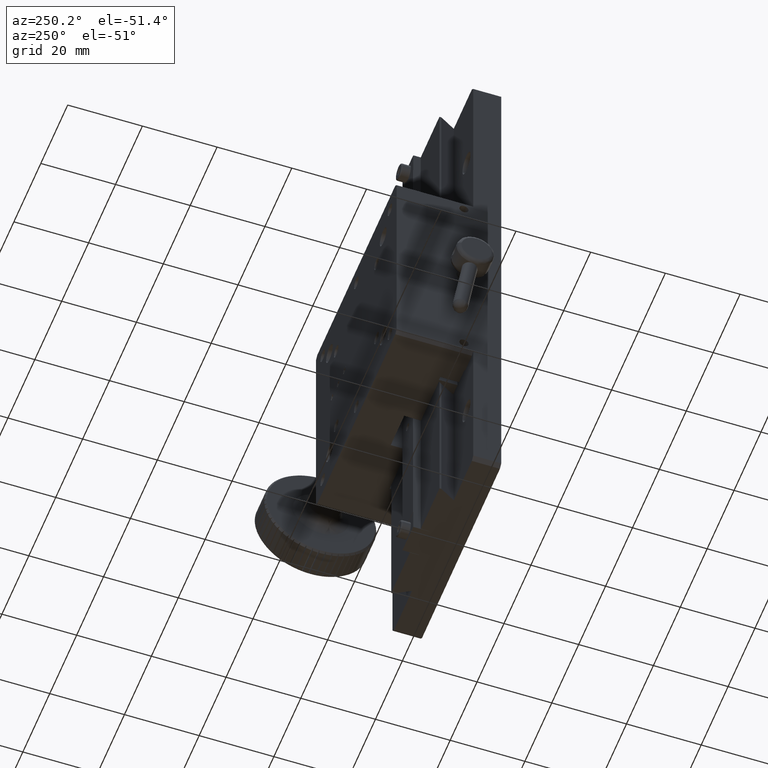
[diagram: clean part render]
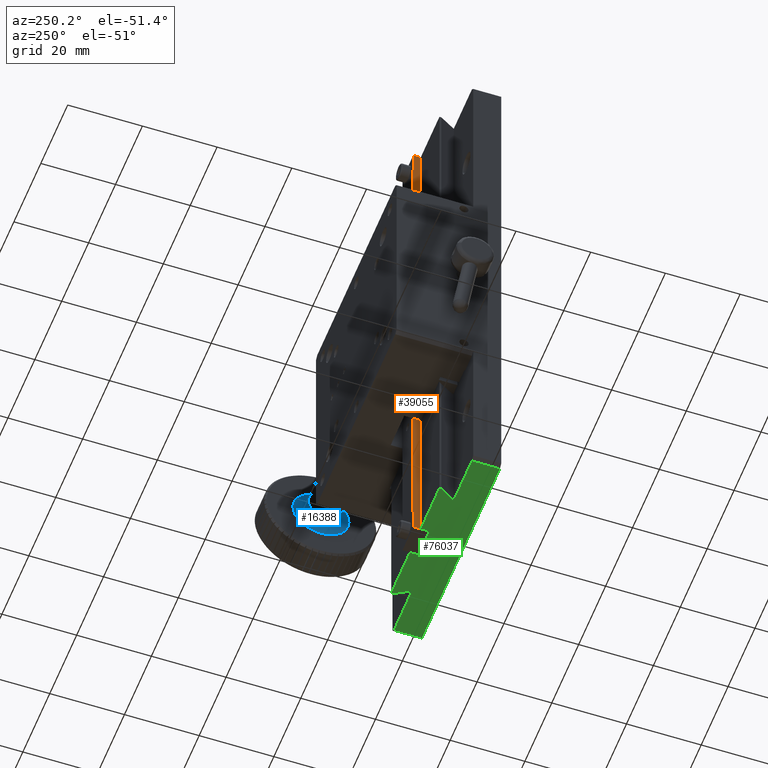
[diagram: same view with three faces highlighted in distinct colors, each labeled with its STEP entity id]
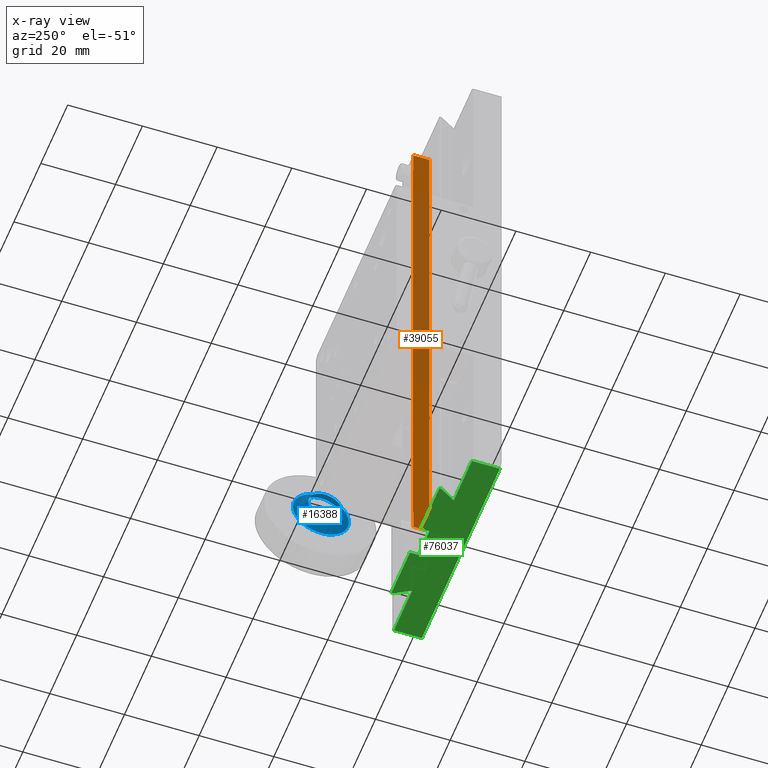
[diagram: x-ray of the same camera — body ghosted, the three highlighted faces saturated]
A machine part, auxiliary view with three faces highlighted in distinct colors.
The next image is the same camera in x-ray (body ghosted, the three faces saturated) — at least one of them is partly hidden behind the body in this view.
Their STEP definitions:

[orange] entity #39055 — the highlighted planar face has unit normal (1, 0, -0).
#3219 = CARTESIAN_POINT ( 'NONE',  ( 60.50156960994771538, 71.37772800986743960, 19.82318078334707678 ) ) ;
#3341 = LINE ( 'NONE', #18684, #95966 ) ;
#4763 = VECTOR ( 'NONE', #82311, 1000.000000000000000 ) ;
#6037 = CARTESIAN_POINT ( 'NONE',  ( 60.50156960994809907, 71.30272800986743675, 163.8231807833470555 ) ) ;
#6126 = DIRECTION ( 'NONE',  ( 0.000000000000000000, 1.000000000000000000, 0.000000000000000000 ) ) ;
#7041 = CARTESIAN_POINT ( 'NONE',  ( 60.50156960994759459, 71.30272800986740833, 19.82318078334706968 ) ) ;
#9536 = EDGE_CURVE ( 'NONE', #34755, #72191, #11022, .T. ) ;
#10898 = EDGE_CURVE ( 'NONE', #72492, #67115, #81812, .T. ) ;
#11022 = LINE ( 'NONE', #42221, #25913 ) ;
#11810 = EDGE_CURVE ( 'NONE', #16982, #72492, #24421, .T. ) ;
#12265 = ORIENTED_EDGE ( 'NONE', *, *, #87135, .F. ) ;
#12750 = ORIENTED_EDGE ( 'NONE', *, *, #32041, .T. ) ;
#13912 = EDGE_CURVE ( 'NONE', #20950, #67115, #59156, .T. ) ;
#15326 = LINE ( 'NONE', #78237, #71703 ) ;
#16982 = VERTEX_POINT ( 'NONE', #56753 ) ;
#18209 = VERTEX_POINT ( 'NONE', #36132 ) ;
#18257 = DIRECTION ( 'NONE',  ( 1.000000000000000000, 0.000000000000000000, -3.491481338843133355E-15 ) ) ;
#18684 = CARTESIAN_POINT ( 'NONE',  ( 60.50156960994809907, 71.37772800986743960, 163.8231807833470555 ) ) ;
#20950 = VERTEX_POINT ( 'NONE', #23530 ) ;
#23530 = CARTESIAN_POINT ( 'NONE',  ( 60.50156960994757327, 67.00272800986743960, 13.82318078334706435 ) ) ;
#24421 = LINE ( 'NONE', #41302, #79912 ) ;
#25913 = VECTOR ( 'NONE', #79593, 1000.000000000000000 ) ;
#28940 = AXIS2_PLACEMENT_3D ( 'NONE', #95986, #18257, #74499 ) ;
#32041 = EDGE_CURVE ( 'NONE', #16982, #90253, #84608, .T. ) ;
#33210 = EDGE_CURVE ( 'NONE', #34755, #90253, #3341, .T. ) ;
#33600 = FACE_OUTER_BOUND ( 'NONE', #68856, .T. ) ;
#34622 = CARTESIAN_POINT ( 'NONE',  ( 60.50156960994757327, 67.00272800986743960, 163.8231807833470270 ) ) ;
#34755 = VERTEX_POINT ( 'NONE', #3219 ) ;
#36132 = CARTESIAN_POINT ( 'NONE',  ( 60.50156960994758037, 71.30272800986740833, 13.82318078334707145 ) ) ;
#38227 = CARTESIAN_POINT ( 'NONE',  ( 60.50156960994809907, 71.30272800986740833, 163.8231807833470555 ) ) ;
#39055 = ADVANCED_FACE ( 'NONE', ( #33600 ), #64791, .F. ) ;
#39788 = DIRECTION ( 'NONE',  ( 3.491481338843133355E-15, -0.000000000000000000, 1.000000000000000000 ) ) ;
#41302 = CARTESIAN_POINT ( 'NONE',  ( 60.50156960994809907, 71.30272800986743675, 163.8231807833470555 ) ) ;
#42221 = CARTESIAN_POINT ( 'NONE',  ( 60.50156960994759459, 71.30272800986740833, 19.82318078334707678 ) ) ;
#49581 = ORIENTED_EDGE ( 'NONE', *, *, #10898, .F. ) ;
#51101 = CARTESIAN_POINT ( 'NONE',  ( 60.50156960994809907, 67.00272800986743960, 163.8231807833470555 ) ) ;
#51463 = ORIENTED_EDGE ( 'NONE', *, *, #63767, .F. ) ;
#53039 = CARTESIAN_POINT ( 'NONE',  ( 60.50156960994796407, 67.00272800986743960, 163.8231807833470555 ) ) ;
#54582 = LINE ( 'NONE', #38227, #96125 ) ;
#56753 = CARTESIAN_POINT ( 'NONE',  ( 60.50156960994808486, 71.30272800986743675, 157.8231807833470555 ) ) ;
#59156 = LINE ( 'NONE', #34622, #94714 ) ;
#63767 = EDGE_CURVE ( 'NONE', #20950, #18209, #15326, .T. ) ;
#64791 = PLANE ( 'NONE',  #28940 ) ;
#67115 = VERTEX_POINT ( 'NONE', #53039 ) ;
#67138 = ORIENTED_EDGE ( 'NONE', *, *, #11810, .F. ) ;
#68856 = EDGE_LOOP ( 'NONE', ( #67138, #12750, #92648, #80072, #12265, #51463, #77533, #49581 ) ) ;
#71703 = VECTOR ( 'NONE', #6126, 1000.000000000000000 ) ;
#72191 = VERTEX_POINT ( 'NONE', #7041 ) ;
#72492 = VERTEX_POINT ( 'NONE', #6037 ) ;
#73194 = CARTESIAN_POINT ( 'NONE',  ( 60.50156960994807775, 71.37772800986743960, 157.8231807833470555 ) ) ;
#74499 = DIRECTION ( 'NONE',  ( -3.491481338843133355E-15, 0.000000000000000000, -1.000000000000000000 ) ) ;
#75957 = CARTESIAN_POINT ( 'NONE',  ( 60.50156960994807775, 71.30272800986743675, 157.8231807833470555 ) ) ;
#77533 = ORIENTED_EDGE ( 'NONE', *, *, #13912, .T. ) ;
#78237 = CARTESIAN_POINT ( 'NONE',  ( 60.50156960994757327, 67.00272800986743960, 13.82318078334707145 ) ) ;
#79593 = DIRECTION ( 'NONE',  ( -0.000000000000000000, -1.000000000000000000, -0.000000000000000000 ) ) ;
#79912 = VECTOR ( 'NONE', #39788, 1000.000000000000000 ) ;
#80072 = ORIENTED_EDGE ( 'NONE', *, *, #9536, .T. ) ;
#81812 = LINE ( 'NONE', #51101, #4763 ) ;
#82311 = DIRECTION ( 'NONE',  ( -0.000000000000000000, -1.000000000000000000, -0.000000000000000000 ) ) ;
#84608 = LINE ( 'NONE', #75957, #86346 ) ;
#85790 = DIRECTION ( 'NONE',  ( 3.491481338843133355E-15, -0.000000000000000000, 1.000000000000000000 ) ) ;
#86346 = VECTOR ( 'NONE', #98461, 1000.000000000000000 ) ;
#87135 = EDGE_CURVE ( 'NONE', #18209, #72191, #54582, .T. ) ;
#88850 = DIRECTION ( 'NONE',  ( 0.000000000000000000, -0.000000000000000000, 1.000000000000000000 ) ) ;
#89266 = DIRECTION ( 'NONE',  ( 3.491481338843133355E-15, -0.000000000000000000, 1.000000000000000000 ) ) ;
#90253 = VERTEX_POINT ( 'NONE', #73194 ) ;
#92648 = ORIENTED_EDGE ( 'NONE', *, *, #33210, .F. ) ;
#94714 = VECTOR ( 'NONE', #88850, 1000.000000000000000 ) ;
#95966 = VECTOR ( 'NONE', #89266, 1000.000000000000000 ) ;
#95986 = CARTESIAN_POINT ( 'NONE',  ( 60.50156960994809907, 67.00272800986743960, 163.8231807833470555 ) ) ;
#96125 = VECTOR ( 'NONE', #85790, 1000.000000000000000 ) ;
#98461 = DIRECTION ( 'NONE',  ( 0.000000000000000000, 1.000000000000000000, 0.000000000000000000 ) ) ;

[blue] entity #16388 — the highlighted face is a freeform B-spline surface patch.
#1970 = CARTESIAN_POINT ( 'NONE',  ( 118.9015696099422854, 77.66444812711456791, 93.07250642092982673 ) ) ;
#5305 = CARTESIAN_POINT ( 'NONE',  ( 117.6589289228233497, 73.40787182901657104, 81.85281131729750825 ) ) ;
#5362 = CARTESIAN_POINT ( 'NONE',  ( 118.9015696099426691, 72.34372775449214998, 79.04788754138944284 ) ) ;
#5567 = EDGE_LOOP ( 'NONE', ( #35929, #38066 ) ) ;
#6286 = CARTESIAN_POINT ( 'NONE',  ( 117.6589289228224828, 85.01507538031434308, 87.07515042144811446 ) ) ;
#9718 = VERTEX_POINT ( 'NONE', #5362 ) ;
#10306 =( BOUNDED_CURVE ( )  B_SPLINE_CURVE ( 3, ( #1970, #49019, #17806, #50001 ),
 .UNSPECIFIED., .F., .T. ) 
 B_SPLINE_CURVE_WITH_KNOTS ( ( 4, 4 ),
 ( 0.000000000000000000, 1.000000000000000000 ),
 .UNSPECIFIED. ) 
 CURVE ( )  GEOMETRIC_REPRESENTATION_ITEM ( )  RATIONAL_B_SPLINE_CURVE ( ( 1.000000000000000000, 0.3333333333333321491, 0.3333333333333321491, 1.000000000000000000 ) ) 
 REPRESENTATION_ITEM ( '' )  );
#13493 = CARTESIAN_POINT ( 'NONE',  ( 118.9015696099426833, 72.34372775449216419, 79.04788754138944284 ) ) ;
#14026 = VERTEX_POINT ( 'NONE', #19261 ) ;
#14988 = CARTESIAN_POINT ( 'NONE',  ( 118.9015696099426833, 72.34372775449216419, 79.04788754138944284 ) ) ;
#15411 = VERTEX_POINT ( 'NONE', #78330 ) ;
#16388 = ADVANCED_FACE ( 'NONE', ( #21643, #44681 ), #19325, .F. ) ;
#17342 = CARTESIAN_POINT ( 'NONE',  ( 115.9015696099424844, 75.00408794080323105, 86.06019698115960637 ) ) ;
#17806 = CARTESIAN_POINT ( 'NONE',  ( 118.9015696099416601, 86.36834663403250545, 73.72716716876679754 ) ) ;
#19261 = CARTESIAN_POINT ( 'NONE',  ( 118.9015696099422854, 77.66444812711456791, 93.07250642092982673 ) ) ;
#19325 =( BOUNDED_SURFACE ( )  B_SPLINE_SURFACE ( 3, 3, ( 
 ( #92719, #52350, #85053, #68702, #29826, #22636, #60528 ),
 ( #5305, #60013, #6286, #36010, #67210, #75403, #45170 ),
 ( #21143, #20634, #92222, #37996, #91225, #83559, #61016 ),
 ( #13493, #22132, #53843, #83052, #75893, #59520, #14988 ) ),
 .UNSPECIFIED., .F., .T., .T. ) 
 B_SPLINE_SURFACE_WITH_KNOTS ( ( 4, 4 ),
 ( 4, 3, 4 ),
 ( 0.000000000000000000, 1.000000000000000000 ),
 ( 0.000000000000000000, 0.5000000000000000000, 1.000000000000000000 ),
 .UNSPECIFIED. ) 
 GEOMETRIC_REPRESENTATION_ITEM ( )  RATIONAL_B_SPLINE_SURFACE ( (
 ( 1.000000000000000000, 0.3333333333333333148, 0.3333333333333333148, 1.000000000000000000, 0.3333333333333333148, 0.3333333333333333148, 1.000000000000000000),
 ( 0.8047378541243646044, 0.2682459513747881830, 0.2682459513747881830, 0.8047378541243646044, 0.2682459513747881830, 0.2682459513747881830, 0.8047378541243646044),
 ( 0.8047378541243646044, 0.2682459513747881830, 0.2682459513747881830, 0.8047378541243646044, 0.2682459513747881830, 0.2682459513747881830, 0.8047378541243646044),
 ( 1.000000000000000000, 0.3333333333333333148, 0.3333333333333333148, 1.000000000000000000, 0.3333333333333333148, 0.3333333333333333148, 1.000000000000000000) ) ) 
 REPRESENTATION_ITEM ( '' )  SURFACE ( )  );
#20634 = CARTESIAN_POINT ( 'NONE',  ( 118.9015696099418733, 83.70553518756153721, 76.61697580834604082 ) ) ;
#21143 = CARTESIAN_POINT ( 'NONE',  ( 118.9015696099426691, 72.96708892102965649, 80.69097384789364469 ) ) ;
#21643 = FACE_OUTER_BOUND ( 'NONE', #5567, .T. ) ;
#22132 = CARTESIAN_POINT ( 'NONE',  ( 118.9015696099416743, 86.36834663403249124, 73.72716716876684018 ) ) ;
#22580 = CARTESIAN_POINT ( 'NONE',  ( 118.9015696099436639, 58.31910887495381957, 84.36860791401130655 ) ) ;
#22636 = CARTESIAN_POINT ( 'NONE',  ( 115.9015696099432091, 64.99310050129226113, 85.04524354087108406 ) ) ;
#26336 = ORIENTED_EDGE ( 'NONE', *, *, #78812, .F. ) ;
#26469 = EDGE_LOOP ( 'NONE', ( #26336 ) ) ;
#29826 = CARTESIAN_POINT ( 'NONE',  ( 115.9015696099429533, 68.18553272486583694, 93.46001486859526608 ) ) ;
#35718 = EDGE_CURVE ( 'NONE', #9718, #14026, #42919, .T. ) ;
#35929 = ORIENTED_EDGE ( 'NONE', *, *, #100715, .T. ) ;
#36010 = CARTESIAN_POINT ( 'NONE',  ( 117.6589289228231223, 76.60030405259014685, 90.26758264502170448 ) ) ;
#37996 = CARTESIAN_POINT ( 'NONE',  ( 118.9015696099423707, 77.04108696057726036, 91.42942011442558226 ) ) ;
#38066 = ORIENTED_EDGE ( 'NONE', *, *, #35718, .T. ) ;
#42919 =( BOUNDED_CURVE ( )  B_SPLINE_CURVE ( 3, ( #85502, #22580, #62472, #55306 ),
 .UNSPECIFIED., .F., .T. ) 
 B_SPLINE_CURVE_WITH_KNOTS ( ( 4, 4 ),
 ( 0.000000000000000000, 1.000000000000000000 ),
 .UNSPECIFIED. ) 
 CURVE ( )  GEOMETRIC_REPRESENTATION_ITEM ( )  RATIONAL_B_SPLINE_CURVE ( ( 1.000000000000000000, 0.3333333333333806103, 0.3333333333333806103, 1.000000000000000000 ) ) 
 REPRESENTATION_ITEM ( '' )  );
#44681 = FACE_OUTER_BOUND ( 'NONE', #26469, .T. ) ;
#45170 = CARTESIAN_POINT ( 'NONE',  ( 117.6589289228233497, 73.40787182901657104, 81.85281131729750825 ) ) ;
#49019 = CARTESIAN_POINT ( 'NONE',  ( 118.9015696099412764, 91.68906700665512233, 87.75178604830716722 ) ) ;
#50001 = CARTESIAN_POINT ( 'NONE',  ( 118.9015696099426691, 72.34372775449214998, 79.04788754138944284 ) ) ;
#52350 = CARTESIAN_POINT ( 'NONE',  ( 115.9015696099419443, 81.82264315674065358, 78.66037909372393244 ) ) ;
#53843 = CARTESIAN_POINT ( 'NONE',  ( 118.9015696099412622, 91.68906700665505127, 87.75178604830718143 ) ) ;
#54825 = CIRCLE ( 'NONE', #97334, 4.500000000000003553 ) ;
#55306 = CARTESIAN_POINT ( 'NONE',  ( 118.9015696099422854, 77.66444812711456791, 93.07250642092982673 ) ) ;
#59520 = CARTESIAN_POINT ( 'NONE',  ( 118.9015696099436923, 58.31910887495184426, 84.36860791401204551 ) ) ;
#60013 = CARTESIAN_POINT ( 'NONE',  ( 117.6589289228226960, 81.82264315674078148, 78.66037909372394665 ) ) ;
#60528 = CARTESIAN_POINT ( 'NONE',  ( 115.9015696099425980, 73.40787182901645735, 81.85281131729750825 ) ) ;
#61016 = CARTESIAN_POINT ( 'NONE',  ( 118.9015696099426691, 72.96708892102965649, 80.69097384789364469 ) ) ;
#62472 = CARTESIAN_POINT ( 'NONE',  ( 118.9015696099433086, 63.63982924757470983, 98.39322679355001355 ) ) ;
#64396 = DIRECTION ( 'NONE',  ( 2.467162276944790489E-14, -0.3547146915081743068, -0.9349745919693543961 ) ) ;
#65899 = DIRECTION ( 'NONE',  ( -1.000000000000000000, -7.255693219817080100E-14, 3.296481619773228797E-18 ) ) ;
#67210 = CARTESIAN_POINT ( 'NONE',  ( 117.6589289228237050, 68.18553272486596484, 93.46001486859525187 ) ) ;
#68702 = CARTESIAN_POINT ( 'NONE',  ( 115.9015696099423707, 76.60030405259001896, 90.26758264502170448 ) ) ;
#75403 = CARTESIAN_POINT ( 'NONE',  ( 117.6589289228239323, 64.99310050129237482, 85.04524354087108406 ) ) ;
#75893 = CARTESIAN_POINT ( 'NONE',  ( 118.9015696099432944, 63.63982924757443271, 98.39322679355231571 ) ) ;
#78330 = CARTESIAN_POINT ( 'NONE',  ( 115.9015696099425980, 73.40787182901645735, 81.85281131729750825 ) ) ;
#78812 = EDGE_CURVE ( 'NONE', #15411, #15411, #54825, .T. ) ;
#83052 = CARTESIAN_POINT ( 'NONE',  ( 118.9015696099422854, 77.66444812711475265, 93.07250642092975568 ) ) ;
#83559 = CARTESIAN_POINT ( 'NONE',  ( 118.9015696099434223, 62.22864265449774024, 84.76497188744126277 ) ) ;
#85053 = CARTESIAN_POINT ( 'NONE',  ( 115.9015696099417596, 85.01507538031422939, 87.07515042144812867 ) ) ;
#85502 = CARTESIAN_POINT ( 'NONE',  ( 118.9015696099426691, 72.34372775449214998, 79.04788754138944284 ) ) ;
#91225 = CARTESIAN_POINT ( 'NONE',  ( 118.9015696099431096, 66.30264069404532279, 95.50341815397314349 ) ) ;
#92222 = CARTESIAN_POINT ( 'NONE',  ( 118.9015696099415464, 87.77953322710916950, 87.35542207487797839 ) ) ;
#92719 = CARTESIAN_POINT ( 'NONE',  ( 115.9015696099425980, 73.40787182901645735, 81.85281131729750825 ) ) ;
#97334 = AXIS2_PLACEMENT_3D ( 'NONE', #17342, #65899, #64396 ) ;
#100715 = EDGE_CURVE ( 'NONE', #14026, #9718, #10306, .T. ) ;

[green] entity #76037 — the highlighted planar face has unit normal (0, 0, -1).
#103 = CARTESIAN_POINT ( 'NONE',  ( 35.50156960994751643, 57.10272800986759734, 13.82318078334729350 ) ) ;
#1127 = VECTOR ( 'NONE', #13478, 1000.000000000000000 ) ;
#1170 = VERTEX_POINT ( 'NONE', #31192 ) ;
#2372 = CARTESIAN_POINT ( 'NONE',  ( 82.41511587513878112, 69.30272800986782045, 13.82318078334728284 ) ) ;
#3172 = VECTOR ( 'NONE', #79277, 1000.000000000000000 ) ;
#3432 = VERTEX_POINT ( 'NONE', #58159 ) ;
#4284 = CARTESIAN_POINT ( 'NONE',  ( 64.50156960994755195, 64.60272800986781760, 13.82318078334728284 ) ) ;
#6803 = EDGE_CURVE ( 'NONE', #79972, #76038, #19048, .T. ) ;
#7176 = EDGE_CURVE ( 'NONE', #72772, #88653, #37411, .T. ) ;
#7761 = DIRECTION ( 'NONE',  ( 1.000000000000000000, -0.000000000000000000, 0.000000000000000000 ) ) ;
#9074 = CARTESIAN_POINT ( 'NONE',  ( 82.41511587513879533, 68.78311276759721693, 13.82318078334727751 ) ) ;
#9166 = CARTESIAN_POINT ( 'NONE',  ( 93.50156960994749511, 57.10272800986770392, 13.82318078334728284 ) ) ;
#9379 = VECTOR ( 'NONE', #66743, 1000.000000000000000 ) ;
#9445 = LINE ( 'NONE', #4284, #69759 ) ;
#10772 = ORIENTED_EDGE ( 'NONE', *, *, #38315, .T. ) ;
#12972 = CARTESIAN_POINT ( 'NONE',  ( 60.45156960994744111, 57.10272800986770392, 13.82318078334728284 ) ) ;
#13085 = EDGE_CURVE ( 'NONE', #76038, #73500, #58647, .T. ) ;
#13189 = ORIENTED_EDGE ( 'NONE', *, *, #91522, .T. ) ;
#13478 = DIRECTION ( 'NONE',  ( -0.000000000000000000, -1.000000000000000000, -0.000000000000000000 ) ) ;
#14612 = VECTOR ( 'NONE', #28456, 1000.000000000000000 ) ;
#15347 = LINE ( 'NONE', #95122, #3172 ) ;
#15524 = VERTEX_POINT ( 'NONE', #95861 ) ;
#15942 = PLANE ( 'NONE',  #77632 ) ;
#16126 = VERTEX_POINT ( 'NONE', #33477 ) ;
#16735 = VERTEX_POINT ( 'NONE', #25548 ) ;
#17464 = FACE_OUTER_BOUND ( 'NONE', #75167, .T. ) ;
#19048 = LINE ( 'NONE', #43089, #89536 ) ;
#20195 = LINE ( 'NONE', #36557, #9379 ) ;
#21266 = VECTOR ( 'NONE', #88254, 1000.000000000000000 ) ;
#23951 = CARTESIAN_POINT ( 'NONE',  ( 82.41511587513878112, 68.78311276759717430, 13.82318078334728284 ) ) ;
#24009 = LINE ( 'NONE', #100247, #78426 ) ;
#24776 = EDGE_CURVE ( 'NONE', #63853, #3432, #24009, .T. ) ;
#25548 = CARTESIAN_POINT ( 'NONE',  ( 46.58802334475602436, 69.30272800986759307, 13.82318078334728462 ) ) ;
#25815 = LINE ( 'NONE', #49857, #21266 ) ;
#28151 = CARTESIAN_POINT ( 'NONE',  ( 93.50156960994749511, 64.60272800986788866, 13.82318078334729172 ) ) ;
#28456 = DIRECTION ( 'NONE',  ( 0.000000000000000000, 1.000000000000000000, 0.000000000000000000 ) ) ;
#29735 = ORIENTED_EDGE ( 'NONE', *, *, #33535, .T. ) ;
#29754 = ORIENTED_EDGE ( 'NONE', *, *, #71153, .T. ) ;
#30788 = CARTESIAN_POINT ( 'NONE',  ( 64.50156960994755195, 67.00272800986766697, 13.82318078334728284 ) ) ;
#31004 = VECTOR ( 'NONE', #50676, 1000.000000000000000 ) ;
#31192 = CARTESIAN_POINT ( 'NONE',  ( 60.45156960994744111, 69.30272800986763571, 13.82318078334728995 ) ) ;
#33477 = CARTESIAN_POINT ( 'NONE',  ( 68.55156960994746385, 69.30272800986772097, 13.82318078334728995 ) ) ;
#33535 = EDGE_CURVE ( 'NONE', #15524, #16126, #20195, .T. ) ;
#36149 = CARTESIAN_POINT ( 'NONE',  ( 35.50156960994753064, 57.10272800986770392, 13.82318078334728284 ) ) ;
#36557 = CARTESIAN_POINT ( 'NONE',  ( 68.55156960994746385, 57.10272800986770392, 13.82318078334728284 ) ) ;
#37330 = CARTESIAN_POINT ( 'NONE',  ( 49.00156960994748800, 64.60272800986757602, 13.82318078334728462 ) ) ;
#37411 = LINE ( 'NONE', #23951, #100967 ) ;
#38315 = EDGE_CURVE ( 'NONE', #1170, #42981, #50823, .T. ) ;
#38542 = ORIENTED_EDGE ( 'NONE', *, *, #24776, .T. ) ;
#38964 = LINE ( 'NONE', #30788, #91469 ) ;
#39237 = LINE ( 'NONE', #2372, #65520 ) ;
#40174 = VECTOR ( 'NONE', #49065, 1000.000000000000000 ) ;
#40887 = EDGE_CURVE ( 'NONE', #88653, #76453, #9445, .T. ) ;
#41013 = DIRECTION ( 'NONE',  ( 0.000000000000000000, 0.000000000000000000, -1.000000000000000000 ) ) ;
#42038 = CARTESIAN_POINT ( 'NONE',  ( 60.45156960994745532, 67.00272800986766697, 13.82318078334728995 ) ) ;
#42981 = VERTEX_POINT ( 'NONE', #42038 ) ;
#43089 = CARTESIAN_POINT ( 'NONE',  ( 94.50156960994752353, 57.10272800986790998, 13.82318078334729350 ) ) ;
#45524 = VECTOR ( 'NONE', #61854, 1000.000000000000000 ) ;
#46009 = EDGE_CURVE ( 'NONE', #81080, #72772, #39237, .T. ) ;
#47151 = DIRECTION ( 'NONE',  ( -1.000000000000000000, 0.000000000000000000, -0.000000000000000000 ) ) ;
#48029 = CARTESIAN_POINT ( 'NONE',  ( 80.00156960994748090, 64.60272800986783182, 13.82318078334728462 ) ) ;
#48041 = LINE ( 'NONE', #9166, #45524 ) ;
#48118 = ORIENTED_EDGE ( 'NONE', *, *, #46009, .T. ) ;
#48244 = ORIENTED_EDGE ( 'NONE', *, *, #13085, .T. ) ;
#49065 = DIRECTION ( 'NONE',  ( 1.000000000000000000, -0.000000000000000000, 0.000000000000000000 ) ) ;
#49857 = CARTESIAN_POINT ( 'NONE',  ( 64.50156960994755195, 64.60272800986749075, 13.82318078334728284 ) ) ;
#50477 = ORIENTED_EDGE ( 'NONE', *, *, #78662, .T. ) ;
#50676 = DIRECTION ( 'NONE',  ( -6.982962677686266711E-15, 1.000000000000000000, 0.000000000000000000 ) ) ;
#50823 = LINE ( 'NONE', #12972, #1127 ) ;
#58159 = CARTESIAN_POINT ( 'NONE',  ( 46.58802334475603146, 68.78311276759707482, 13.82318078334726330 ) ) ;
#58212 = CARTESIAN_POINT ( 'NONE',  ( 64.50156960994755195, 69.30272800986772097, 13.82318078334728284 ) ) ;
#58647 = LINE ( 'NONE', #36149, #14612 ) ;
#58948 = EDGE_CURVE ( 'NONE', #73500, #63853, #25815, .T. ) ;
#59323 = CARTESIAN_POINT ( 'NONE',  ( 82.41511587513878112, 69.30272800986780624, 13.82318078334728462 ) ) ;
#59519 = CARTESIAN_POINT ( 'NONE',  ( 35.50156960994750222, 64.60272800986749075, 13.82318078334728106 ) ) ;
#60571 = ORIENTED_EDGE ( 'NONE', *, *, #40887, .T. ) ;
#61854 = DIRECTION ( 'NONE',  ( -0.000000000000000000, -1.000000000000000000, -0.000000000000000000 ) ) ;
#62751 = EDGE_CURVE ( 'NONE', #3432, #16735, #98728, .T. ) ;
#63088 = ORIENTED_EDGE ( 'NONE', *, *, #62751, .T. ) ;
#63853 = VERTEX_POINT ( 'NONE', #37330 ) ;
#65520 = VECTOR ( 'NONE', #70943, 1000.000000000000000 ) ;
#66743 = DIRECTION ( 'NONE',  ( 0.000000000000000000, 1.000000000000000000, 0.000000000000000000 ) ) ;
#69759 = VECTOR ( 'NONE', #72858, 1000.000000000000000 ) ;
#70943 = DIRECTION ( 'NONE',  ( 6.982962677686266711E-15, -1.000000000000000000, 0.000000000000000000 ) ) ;
#71153 = EDGE_CURVE ( 'NONE', #16735, #1170, #15347, .T. ) ;
#72772 = VERTEX_POINT ( 'NONE', #9074 ) ;
#72858 = DIRECTION ( 'NONE',  ( 1.000000000000000000, -0.000000000000000000, 0.000000000000000000 ) ) ;
#73500 = VERTEX_POINT ( 'NONE', #59519 ) ;
#74915 = ORIENTED_EDGE ( 'NONE', *, *, #95876, .T. ) ;
#75167 = EDGE_LOOP ( 'NONE', ( #48118, #96795, #60571, #13189, #97521, #48244, #81208, #38542, #63088, #29754, #10772, #74915, #29735, #50477 ) ) ;
#76038 = VERTEX_POINT ( 'NONE', #103 ) ;
#76037 = ADVANCED_FACE ( 'NONE', ( #17464 ), #15942, .T. ) ;
#76453 = VERTEX_POINT ( 'NONE', #28151 ) ;
#77632 = AXIS2_PLACEMENT_3D ( 'NONE', #88067, #41013, #47151 ) ;
#78426 = VECTOR ( 'NONE', #99754, 1000.000000000000000 ) ;
#78662 = EDGE_CURVE ( 'NONE', #16126, #81080, #87431, .T. ) ;
#79277 = DIRECTION ( 'NONE',  ( 1.000000000000000000, -0.000000000000000000, 0.000000000000000000 ) ) ;
#79972 = VERTEX_POINT ( 'NONE', #80640 ) ;
#80640 = CARTESIAN_POINT ( 'NONE',  ( 93.50156960994750932, 57.10272800986790287, 13.82318078334727929 ) ) ;
#81080 = VERTEX_POINT ( 'NONE', #59323 ) ;
#81208 = ORIENTED_EDGE ( 'NONE', *, *, #58948, .T. ) ;
#87431 = LINE ( 'NONE', #58212, #40174 ) ;
#88067 = CARTESIAN_POINT ( 'NONE',  ( 64.50156960994755195, 57.10272800986770392, 13.82318078334728284 ) ) ;
#88254 = DIRECTION ( 'NONE',  ( 1.000000000000000000, -0.000000000000000000, 0.000000000000000000 ) ) ;
#88653 = VERTEX_POINT ( 'NONE', #48029 ) ;
#89536 = VECTOR ( 'NONE', #90649, 1000.000000000000000 ) ;
#89550 = CARTESIAN_POINT ( 'NONE',  ( 46.58802334475602436, 69.30272800986759307, 13.82318078334728284 ) ) ;
#90649 = DIRECTION ( 'NONE',  ( -1.000000000000000000, -6.982962677686266711E-15, 0.000000000000000000 ) ) ;
#91469 = VECTOR ( 'NONE', #7761, 1000.000000000000000 ) ;
#91522 = EDGE_CURVE ( 'NONE', #76453, #79972, #48041, .T. ) ;
#95122 = CARTESIAN_POINT ( 'NONE',  ( 64.50156960994755195, 69.30272800986759307, 13.82318078334728284 ) ) ;
#95861 = CARTESIAN_POINT ( 'NONE',  ( 68.55156960994746385, 67.00272800986797961, 13.82318078334728995 ) ) ;
#95876 = EDGE_CURVE ( 'NONE', #42981, #15524, #38964, .T. ) ;
#96795 = ORIENTED_EDGE ( 'NONE', *, *, #7176, .T. ) ;
#97521 = ORIENTED_EDGE ( 'NONE', *, *, #6803, .T. ) ;
#98728 = LINE ( 'NONE', #89550, #31004 ) ;
#99754 = DIRECTION ( 'NONE',  ( -0.5000000000000187628, 0.8660254037844278274, 0.000000000000000000 ) ) ;
#99815 = DIRECTION ( 'NONE',  ( -0.5000000000000073275, -0.8660254037844343777, 0.000000000000000000 ) ) ;
#100247 = CARTESIAN_POINT ( 'NONE',  ( 49.00156960994747379, 64.60272800986759023, 13.82318078334728284 ) ) ;
#100967 = VECTOR ( 'NONE', #99815, 1000.000000000000114 ) ;